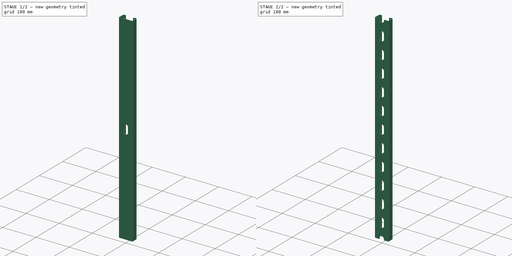
[diagram: build sequence overview — one tinted view per stage of 2, left to right]
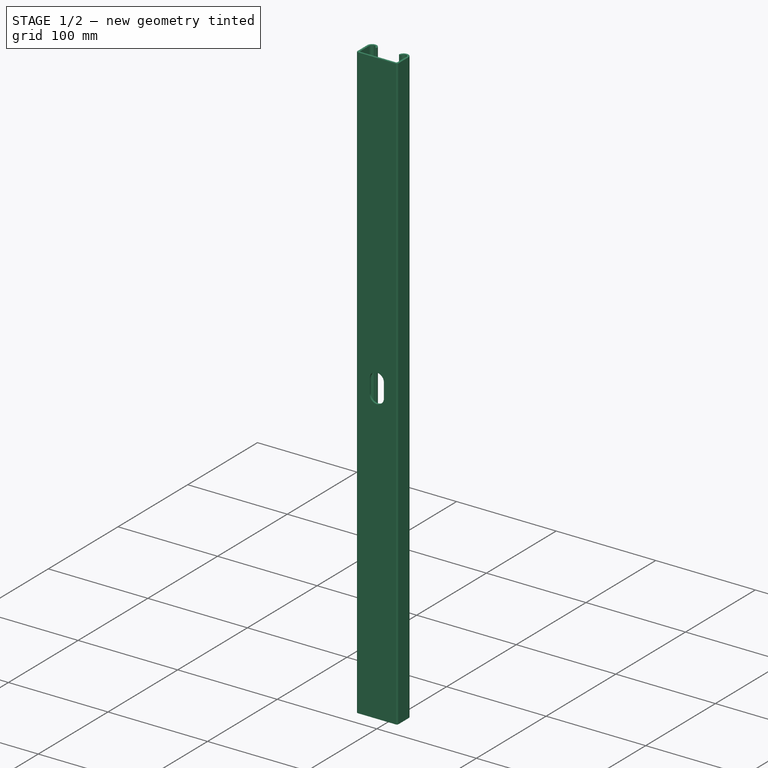
[diagram: stage 1 of 2 — iso view after this stage's code; geometry added in this stage tinted green]
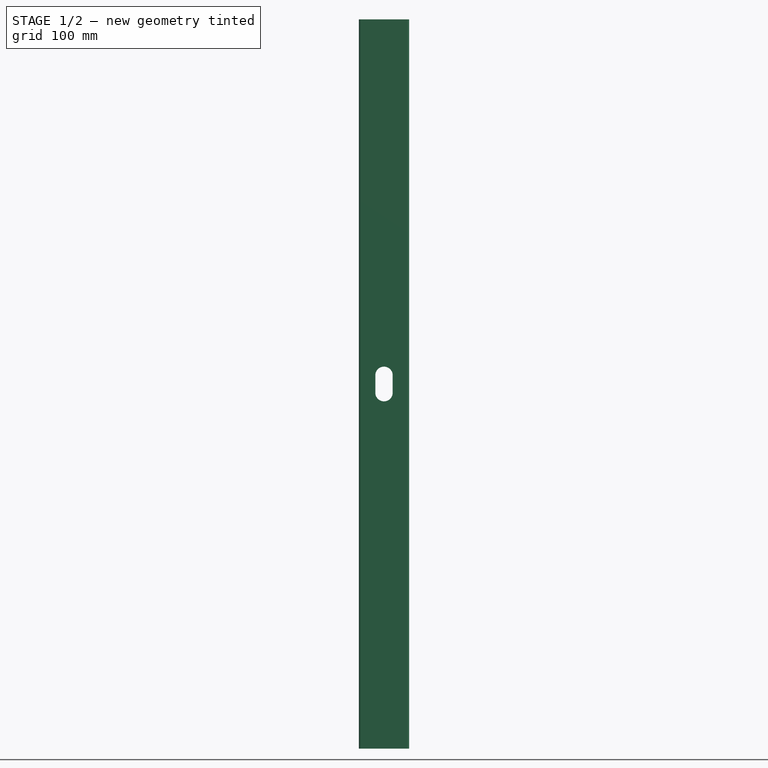
[diagram: stage 1 of 2 — front view after this stage's code; geometry added in this stage tinted green]
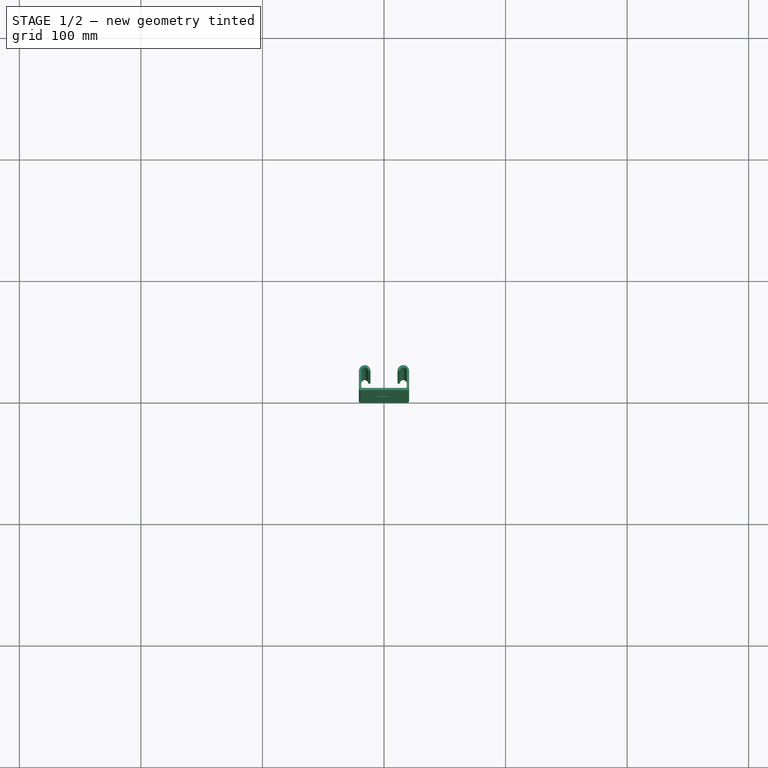
[diagram: stage 1 of 2 — top view after this stage's code; geometry added in this stage tinted green]
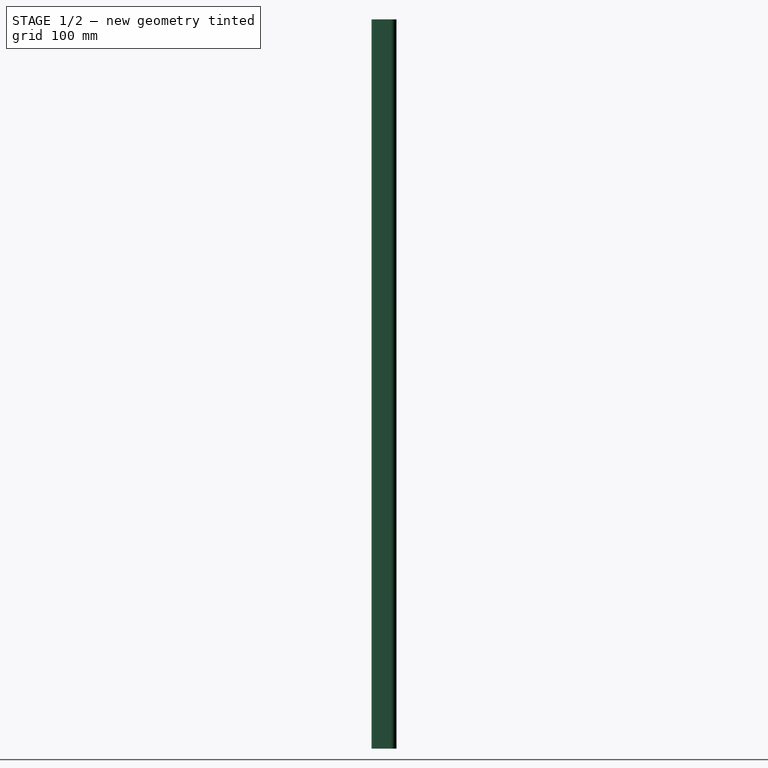
[diagram: stage 1 of 2 — right view after this stage's code; geometry added in this stage tinted green]
FCSTD DOCUMENT  (FreeCAD 0.20R29177 +426 (Git))
Label: StrutChannelHalf
License: All rights reserved
LicenseURL: http://en.wikipedia.org/wiki/All_rights_reserved
objects: App::DocumentObjectGroup×3, PartDesign::CoordinateSystem×2, Sketcher::SketchObject×2, App::FeaturePython×1, PartDesign::Pad×1, PartDesign::Pocket×1, PartDesign::LinearPattern×1, PartDesign::Mirrored×1, PartDesign::MultiTransform×1, PartDesign::Body×1, App::Part×1
note: 12 computed .brp shape members not serialized (recipe doc carries the construction recipe); baked Part::Feature solids carry a one-line shape summary decoded from their .brp

FEATURE [App::DocumentObjectGroup] Parts
FEATURE [PartDesign::CoordinateSystem] LCS_Origin
  AttacherType = Attacher::AttachEngine3D
  MapMode = 2
  Support = -> [X_Axis]
FEATURE [App::FeaturePython] Variables  # WARN: FeaturePython — macro-defined, semantics opaque (R4)
  Length = 600
  Type = App::PropertyContainer
FEATURE [App::DocumentObjectGroup] Constraints
FEATURE [App::DocumentObjectGroup] Configurations
FEATURE [Sketcher::SketchObject] Sketch
  FullyConstrained = true
  MapMode = 5
  Support = -> [XY_Plane001]
  sketch-geometry (22):
    g0: ArcOfCircle CenterX=-15.875 CenterY=15.8775 CenterZ=0 NormalX=0 NormalY=0 NormalZ=1 AngleXU=0 Radius=4.7625 StartAngle=-5.3e-15 EndAngle=3.14159
    g1: ArcOfCircle CenterX=15.875 CenterY=15.8775 CenterZ=0 NormalX=0 NormalY=0 NormalZ=1 AngleXU=0 Radius=4.7625 StartAngle=1e-16 EndAngle=3.14159
    g2: LineSegment StartX=20.6375 StartY=15.8775 StartZ=0 EndX=20.6375 EndY=1.5 EndZ=0
    g3: ArcOfCircle CenterX=19.1375 CenterY=1.5 CenterZ=0 NormalX=0 NormalY=0 NormalZ=1 AngleXU=0 Radius=1.5 StartAngle=4.71239 EndAngle=6.28319
    g4: LineSegment StartX=19.1375 StartY=0 StartZ=0 EndX=-19.1375 EndY=0 EndZ=0
    g5: ArcOfCircle CenterX=-19.1375 CenterY=1.5 CenterZ=0 NormalX=0 NormalY=0 NormalZ=1 AngleXU=0 Radius=1.5 StartAngle=3.14159 EndAngle=4.71239
    g6: LineSegment StartX=-20.6375 StartY=1.5 StartZ=0 EndX=-20.6375 EndY=15.8775 EndZ=0
    g7: GeomPoint X=20.6375 Y=0 Z=0
    g8: ArcOfCircle CenterX=-15.875 CenterY=15.8775 CenterZ=0 NormalX=0 NormalY=0 NormalZ=1 AngleXU=0 Radius=2.86512 StartAngle=-8e-15 EndAngle=3.14159
    g9: ArcOfCircle CenterX=15.875 CenterY=15.8775 CenterZ=0 NormalX=0 NormalY=0 NormalZ=1 AngleXU=0 Radius=2.86512 StartAngle=1e-16 EndAngle=3.14159
    g10: LineSegment StartX=18.7401 StartY=15.8775 StartZ=0 EndX=18.7401 EndY=2.89738 EndZ=0
    g11: ArcOfCircle CenterX=17.7401 CenterY=2.89738 CenterZ=0 NormalX=0 NormalY=0 NormalZ=1 AngleXU=0 Radius=1 StartAngle=4.71239 EndAngle=6.28319
    g12: LineSegment StartX=17.7401 StartY=1.89738 StartZ=0 EndX=-17.7401 EndY=1.89738 EndZ=0
    g13: ArcOfCircle CenterX=-17.7401 CenterY=2.89738 CenterZ=0 NormalX=0 NormalY=0 NormalZ=1 AngleXU=0 Radius=1 StartAngle=3.14159 EndAngle=4.71239
    g14: LineSegment StartX=-18.7401 StartY=2.89738 StartZ=0 EndX=-18.7401 EndY=15.8775 EndZ=0
    g15: GeomPoint X=18.7401 Y=1.89738 Z=0
    g16: GeomPoint X=1.3e-15 Y=1.89738 Z=0
    g17: LineSegment StartX=1.3e-15 StartY=1.89738 StartZ=0 EndX=0 EndY=0 EndZ=0
    g18: LineSegment StartX=18.7401 StartY=15.8775 StartZ=0 EndX=20.6375 EndY=15.8775 EndZ=0
    g19: LineSegment StartX=-13.0099 StartY=15.8775 StartZ=0 EndX=-11.1125 EndY=15.8775 EndZ=0
    g20: LineSegment StartX=11.1125 StartY=15.8775 StartZ=0 EndX=13.0099 EndY=15.8775 EndZ=0
    g21: LineSegment StartX=-15.875 StartY=20.64 StartZ=0 EndX=15.875 EndY=20.64 EndZ=0
  constraints (54):
    c: Tangent(g1,g2) = 1.5708
    c: Tangent(g2,g3) = 1.5708
    c: Tangent(g3,g4) = 1.5708
    c: Tangent(g4,g5) = 1.5708
    c: Tangent(g5,g6) = 1.5708
    c: Tangent(g6,g0) = 1.5708
    c: Horizontal(g4)
    c: Vertical(g2)
    c: Vertical(g6)
    c: Equal(g0,g1)
    c: Equal(g3,g5)
    c: PointOnObject(g7,g2)
    c: PointOnObject(g7,g4)
    c: Symmetric(g4,g3,g-1)
    c: Radius(g3) = 1.5
    c: Radius(g1) = 4.7625
    c: Tangent(g9,g10) = 1.5708
    c: Tangent(g10,g11) = 1.5708
    c: Tangent(g11,g12) = 1.5708
    c: Tangent(g12,g13) = 1.5708
    c: Tangent(g13,g14) = 1.5708
    c: Tangent(g14,g8) = 1.5708
    c: Horizontal(g12)
    c: Vertical(g10)
    c: Vertical(g14)
    c: Equal(g8,g9)
    c: Equal(g11,g13)
    c: PointOnObject(g15,g10)
    c: PointOnObject(g15,g12)
    c: Symmetric(g12,g11,g16)
    c: Coincident(g17,g16)
    c: Coincident(g17,g-1)
    c: DistanceY(g17,g17) = 1.89738
    c: Coincident(g18,g9)
    c: PointOnObject(g18,g2)
    c: Horizontal(g18)
    c: Equal(g18,g17)
    c: Coincident(g9,g1)
    c: Coincident(g8,g0)
    c: PointOnObject(g9,g18)
    c: PointOnObject(g8,g18)
    c: PointOnObject(g1,g18)
    c: PointOnObject(g0,g18)
    c: Coincident(g19,g8)
    c: Coincident(g19,g0)
    c: Coincident(g20,g1)
    c: Coincident(g20,g9)
    c: PointOnObject(g8,g19)
    c: DistanceX(g5,g2) = 41.275
    c: PointOnObject(g21,g0)
    c: Horizontal(g21)
    c: Tangent(g21,g1) = 1.5708
    c: DistanceY(g17,g21) = 20.64  'Height'
    c: Radius(g11) = 1
FEATURE [PartDesign::Pad] Pad
  Direction = (0,0,1)
  Length = 600
  Length2 = 10
  Midplane = true
  Profile = -> Sketch
  ReferenceAxis = -> Sketch [N_Axis]
  Type = 0
  expr: Length = <<Variables>>.Length
FEATURE [Sketcher::SketchObject] Sketch001
  FullyConstrained = true
  MapMode = 5
  Placement = pos=(0,0,0) rot=(1,0,0;1.5708rad)
  Support = -> [XZ_Plane001]
  sketch-geometry (5):
    g0: ArcOfCircle CenterX=0 CenterY=7.14125 CenterZ=0 NormalX=0 NormalY=0 NormalZ=1 AngleXU=0 Radius=7.14375 StartAngle=2.416e-13 EndAngle=3.14159
    g1: ArcOfCircle CenterX=0 CenterY=-7.14125 CenterZ=0 NormalX=0 NormalY=0 NormalZ=1 AngleXU=0 Radius=7.14375 StartAngle=3.14159 EndAngle=6.28319
    g2: LineSegment StartX=-7.14375 StartY=7.14125 StartZ=0 EndX=-7.14375 EndY=-7.14125 EndZ=0
    g3: LineSegment StartX=7.14375 StartY=-7.14125 StartZ=0 EndX=7.14375 EndY=7.14125 EndZ=0
    g4: LineSegment StartX=0 StartY=14.285 StartZ=0 EndX=0 EndY=-14.285 EndZ=0
  constraints (13):
    c: Tangent(g0,g2) = -1.5708
    c: Tangent(g2,g1) = -1.5708
    c: Tangent(g1,g3) = -1.5708
    c: Tangent(g3,g0) = -1.5708
    c: Equal(g0,g1)
    c: PointOnObject(g0,g-2)
    c: Symmetric(g0,g1,g-1)
    c: Diameter(g0) = 14.2875
    c: PointOnObject(g4,g0)
    c: PointOnObject(g4,g1)
    c: PointOnObject(g4,g-2)
    c: PointOnObject(g4,g-2)
    c: DistanceY(g4,g4) = 28.57
FEATURE [PartDesign::Pocket] Pocket  label="MountSlot"
  BaseFeature = -> Pad
  Direction = (0,1,2e-16)
  Length = 3
  Length2 = 5
  Profile = -> Sketch001
  ReferenceAxis = -> Sketch001 [N_Axis]
  Type = 0
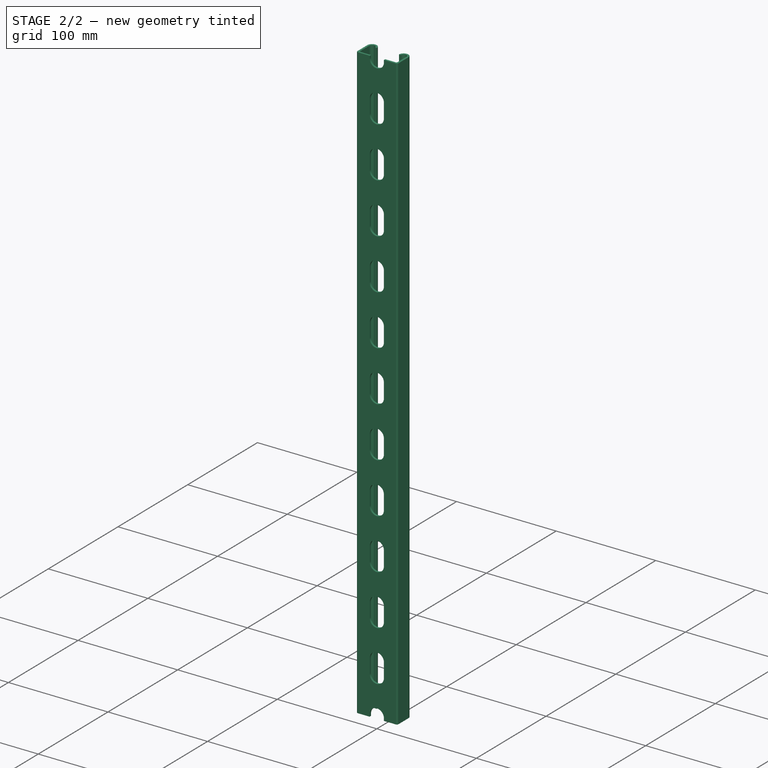
[diagram: stage 2 of 2 — iso view after this stage's code; geometry added in this stage tinted green]
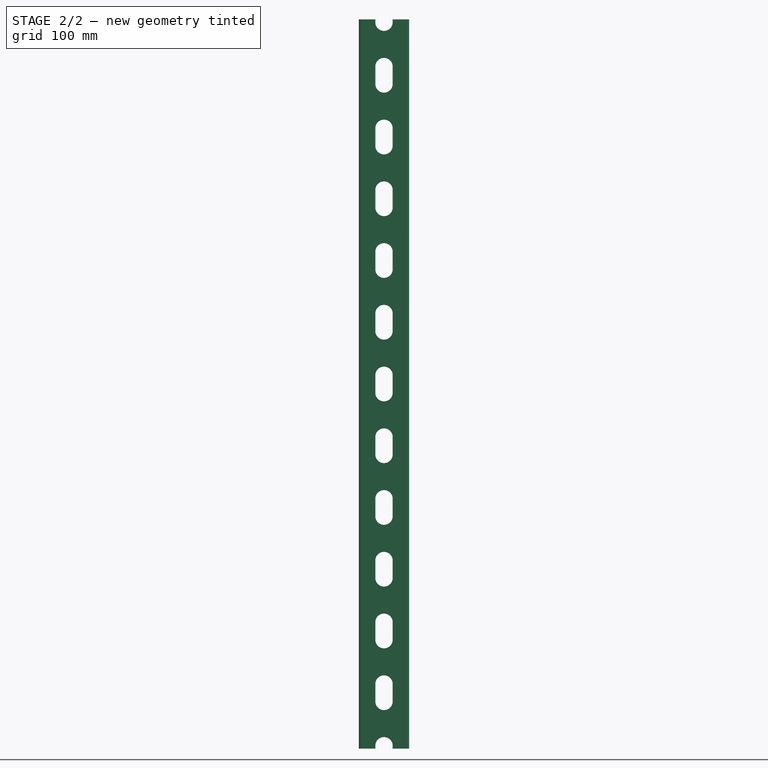
[diagram: stage 2 of 2 — front view after this stage's code; geometry added in this stage tinted green]
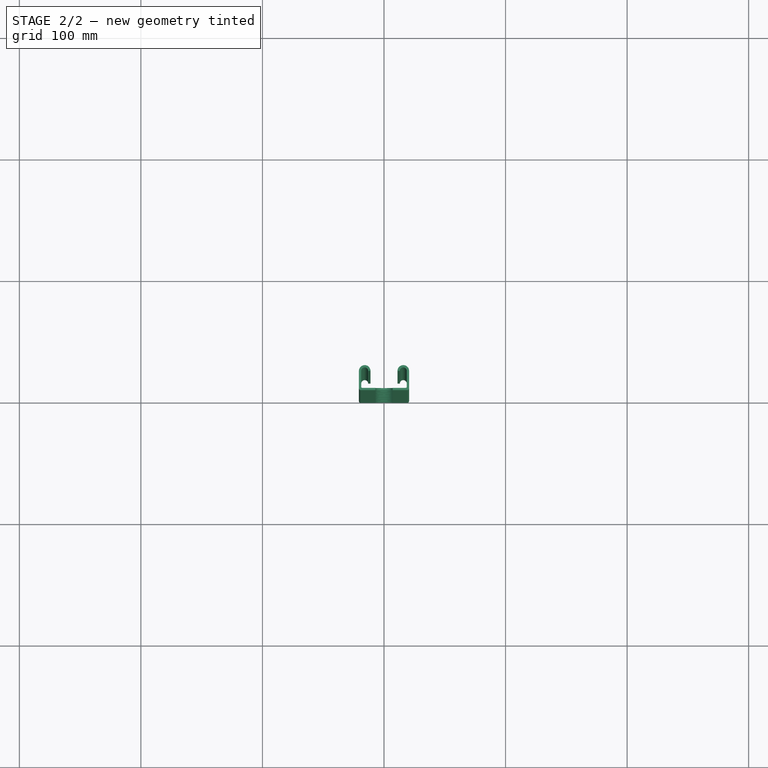
[diagram: stage 2 of 2 — top view after this stage's code; geometry added in this stage tinted green]
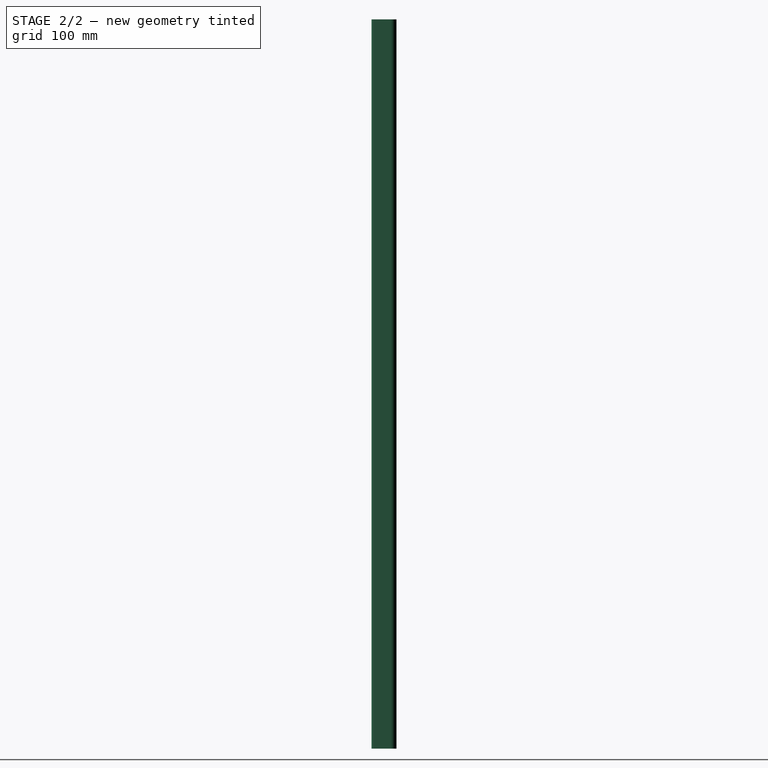
[diagram: stage 2 of 2 — right view after this stage's code; geometry added in this stage tinted green]
FEATURE [PartDesign::LinearPattern] LinearPattern
  Direction = -> Sketch001 [V_Axis]
  Length = 355.6
  Occurrences = 8
  expr: Length = (ceil(<<Variables>>.Length / 2 / 50.8) + 1) * 50.8
  expr: Occurrences = ceil(<<Variables>>.Length / 2 / 50.8) + 2
FEATURE [PartDesign::Mirrored] Mirrored
  MirrorPlane = -> Sketch001 [H_Axis]
FEATURE [PartDesign::MultiTransform] MultiTransform
  BaseFeature = -> Pocket
  Originals = -> [Pocket]
  Transformations = -> [LinearPattern,Mirrored]
FEATURE [PartDesign::Body] Body
  Group = -> [Sketch,Pad,Sketch001,Pocket,MultiTransform,LinearPattern,Mirrored]
  Origin = -> Origin001
  Tip = -> MultiTransform
FEATURE [PartDesign::CoordinateSystem] LCS_Face
  AttacherType = Attacher::AttachEngine3D
  AttachmentOffset = pos=(0,20.64,0) rot=(0,0,1;0rad)
  MapMode = 2
  Placement = pos=(0,20.64,0) rot=(0,0,1;0rad)
  Support = -> [LCS_Origin]
  expr: .AttachmentOffset.Base.y = <<Sketch>>.Constraints.Height
FEATURE [App::Part] Assembly
  AssemblyType = Part::Link
  Group = -> [LCS_Origin,Variables,Constraints,Configurations,Body,LCS_Face]
  Origin = -> Origin
  Type = Assembly
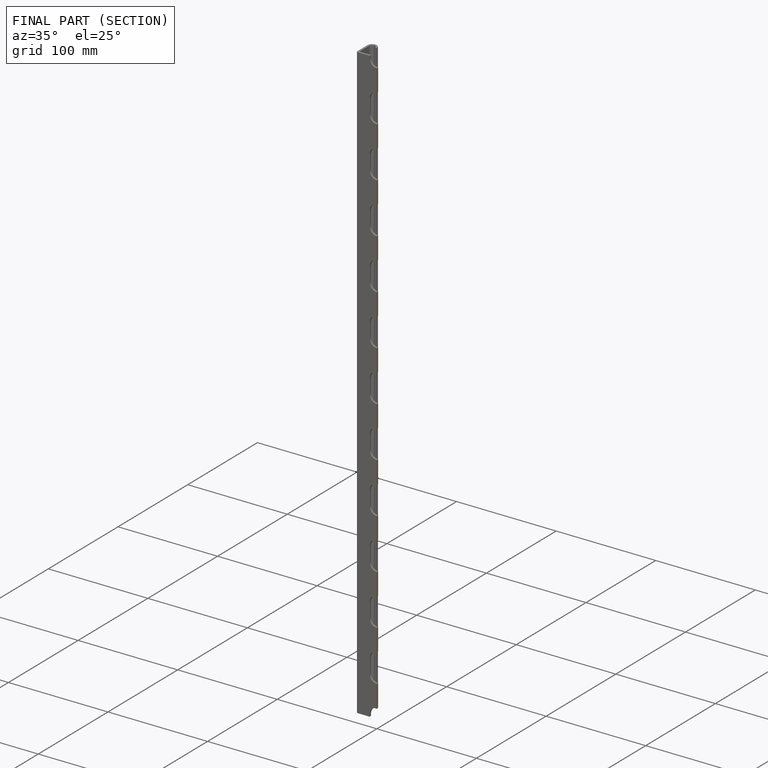
[diagram: finished part — half-section view (interior)]
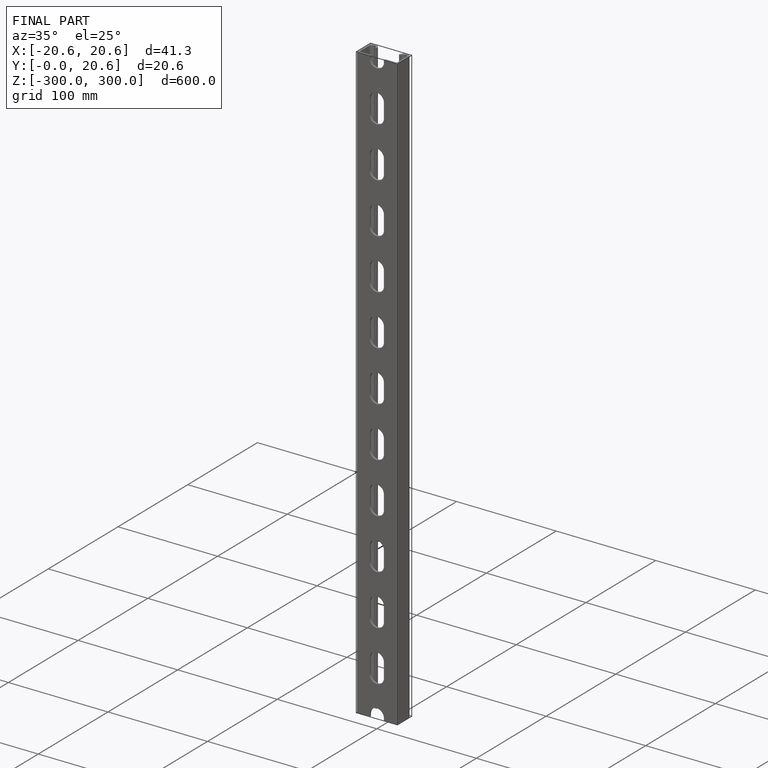
[diagram: finished part — iso view with bounding-box wireframe]
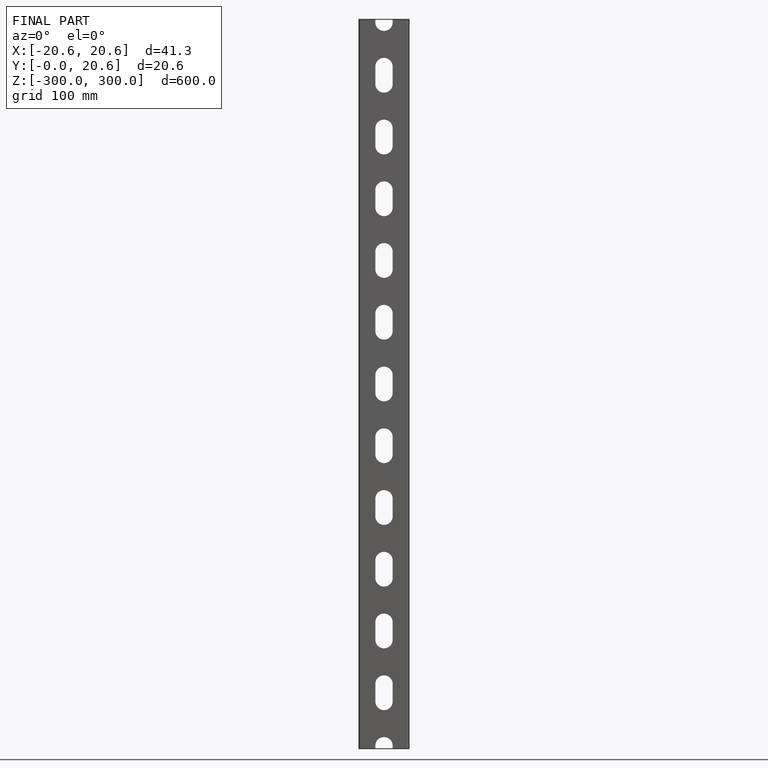
[diagram: finished part — front view with bounding-box wireframe]
